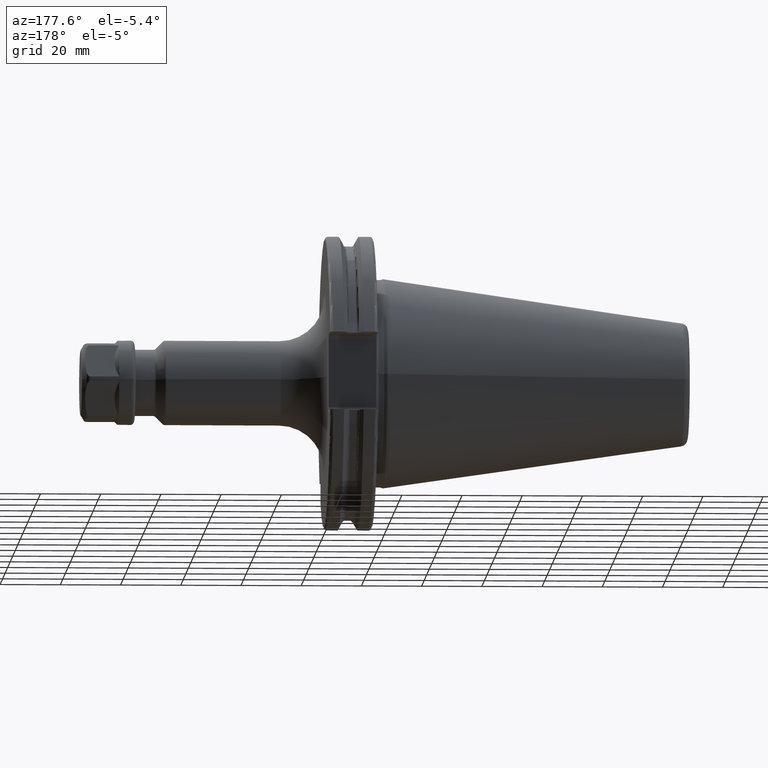
[diagram: clean part render]
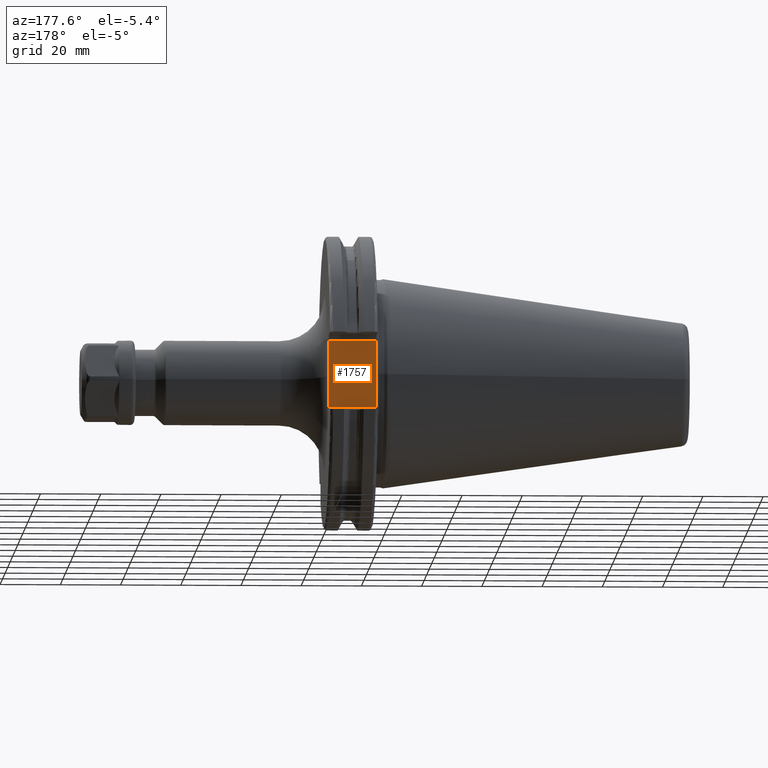
[diagram: same view with one face highlighted and labeled with its STEP entity id]
A machine part, auxiliary view. The second image highlights one B-rep face of the part: STEP entity #1757.
In plain terms, the highlighted planar face has unit normal (0, -1, 0).
Its self-contained STEP definition (entity closure, byte-faithful):
#96=CARTESIAN_POINT('',(3.161444226151E0,3.53E1,-1.048836461230E-13));
#97=CARTESIAN_POINT('',(3.161444226151E0,3.53E1,-2.287557745851E-1));
#98=CARTESIAN_POINT('',(3.162734010751E0,3.53E1,-6.792530123044E-1));
#99=CARTESIAN_POINT('',(3.167877030309E0,3.53E1,-1.331895850106E0));
#100=CARTESIAN_POINT('',(3.175250793624E0,3.53E1,-1.967616454588E0));
#101=CARTESIAN_POINT('',(3.183670148061E0,3.53E1,-2.589717830169E0));
#102=CARTESIAN_POINT('',(3.191796133338E0,3.53E1,-3.202378106077E0));
#103=CARTESIAN_POINT('',(3.198127290791E0,3.53E1,-3.809054455619E0));
#104=CARTESIAN_POINT('',(3.2E0,3.53E1,-4.213157466434E0));
#105=CARTESIAN_POINT('',(3.2E0,3.53E1,-4.414818795828E0));
#122=DIRECTION('',(-1.E0,0.E0,0.E0));
#123=VECTOR('',#122,1.585E1);
#124=CARTESIAN_POINT('',(1.905E1,3.53E1,1.115E1));
#125=LINE('',#124,#123);
#126=DIRECTION('',(-1.E0,0.E0,0.E0));
#127=VECTOR('',#126,1.585E1);
#128=CARTESIAN_POINT('',(1.905E1,3.53E1,-1.115E1));
#129=LINE('',#128,#127);
#152=DIRECTION('',(0.E0,0.E0,-1.E0));
#153=VECTOR('',#152,2.23E1);
#154=CARTESIAN_POINT('',(1.905E1,3.53E1,1.115E1));
#155=LINE('',#154,#153);
#305=DIRECTION('',(0.E0,0.E0,-1.E0));
#306=VECTOR('',#305,6.735181204172E0);
#307=CARTESIAN_POINT('',(3.2E0,3.53E1,-4.414818795828E0));
#308=LINE('',#307,#306);
#309=DIRECTION('',(0.E0,0.E0,-1.E0));
#310=VECTOR('',#309,6.735181204172E0);
#311=CARTESIAN_POINT('',(3.2E0,3.53E1,1.115E1));
#312=LINE('',#311,#310);
#936=CARTESIAN_POINT('',(3.2E0,3.53E1,4.414818795828E0));
#937=CARTESIAN_POINT('',(3.2E0,3.53E1,4.213098987331E0));
#938=CARTESIAN_POINT('',(3.198126239348E0,3.53E1,3.808889642023E0));
#939=CARTESIAN_POINT('',(3.191792541487E0,3.53E1,3.202078124088E0));
#940=CARTESIAN_POINT('',(3.183664786024E0,3.53E1,2.589329618622E0));
#941=CARTESIAN_POINT('',(3.175245424270E0,3.53E1,1.967199873297E0));
#942=CARTESIAN_POINT('',(3.167873523896E0,3.53E1,1.331533559003E0));
#943=CARTESIAN_POINT('',(3.162733016852E0,3.53E1,6.790196322900E-1));
#944=CARTESIAN_POINT('',(3.161444226151E0,3.53E1,2.286685292051E-1));
#945=CARTESIAN_POINT('',(3.161444226151E0,3.53E1,-1.048836461230E-13));
#1456=VERTEX_POINT('',#936);
#1457=VERTEX_POINT('',#945);
#1458=VERTEX_POINT('',#105);
#1507=CARTESIAN_POINT('',(1.905E1,3.53E1,1.115E1));
#1508=CARTESIAN_POINT('',(3.2E0,3.53E1,1.115E1));
#1509=VERTEX_POINT('',#1507);
#1510=VERTEX_POINT('',#1508);
#1519=CARTESIAN_POINT('',(1.905E1,3.53E1,-1.115E1));
#1520=CARTESIAN_POINT('',(3.2E0,3.53E1,-1.115E1));
#1521=VERTEX_POINT('',#1519);
#1522=VERTEX_POINT('',#1520);
#1737=CARTESIAN_POINT('',(1.905E1,3.53E1,1.29E1));
#1738=DIRECTION('',(0.E0,-1.E0,0.E0));
#1739=DIRECTION('',(0.E0,0.E0,-1.E0));
#1740=AXIS2_PLACEMENT_3D('',#1737,#1738,#1739);
#1741=PLANE('',#1740);
#1743=ORIENTED_EDGE('',*,*,#1742,.T.);
#1745=ORIENTED_EDGE('',*,*,#1744,.T.);
#1747=ORIENTED_EDGE('',*,*,#1746,.T.);
#1748=ORIENTED_EDGE('',*,*,#1725,.T.);
#1750=ORIENTED_EDGE('',*,*,#1749,.T.);
#1752=ORIENTED_EDGE('',*,*,#1751,.F.);
#1754=ORIENTED_EDGE('',*,*,#1753,.F.);
#1755=EDGE_LOOP('',(#1743,#1745,#1747,#1748,#1750,#1752,#1754));
#1756=FACE_OUTER_BOUND('',#1755,.F.);
#1757=ADVANCED_FACE('',(#1756),#1741,.F.);
#106=B_SPLINE_CURVE_WITH_KNOTS('',3,(#96,#97,#98,#99,#100,#101,#102,#103,#104,
#105),.UNSPECIFIED.,.F.,.F.,(4,1,1,1,1,1,1,4),(0.E0,1.428571428571E-1,
2.857142857143E-1,4.285714285714E-1,5.714285714286E-1,7.142857142857E-1,
8.571428571429E-1,1.E0),.UNSPECIFIED.);
#946=B_SPLINE_CURVE_WITH_KNOTS('',3,(#936,#937,#938,#939,#940,#941,#942,#943,
#944,#945),.UNSPECIFIED.,.F.,.F.,(4,1,1,1,1,1,1,4),(0.E0,1.428571428571E-1,
2.857142857143E-1,4.285714285714E-1,5.714285714286E-1,7.142857142857E-1,
8.571428571429E-1,1.E0),.UNSPECIFIED.);
#1725=EDGE_CURVE('',#1457,#1458,#106,.T.);
#1742=EDGE_CURVE('',#1509,#1510,#125,.T.);
#1744=EDGE_CURVE('',#1510,#1456,#312,.T.);
#1746=EDGE_CURVE('',#1456,#1457,#946,.T.);
#1749=EDGE_CURVE('',#1458,#1522,#308,.T.);
#1751=EDGE_CURVE('',#1521,#1522,#129,.T.);
#1753=EDGE_CURVE('',#1509,#1521,#155,.T.);